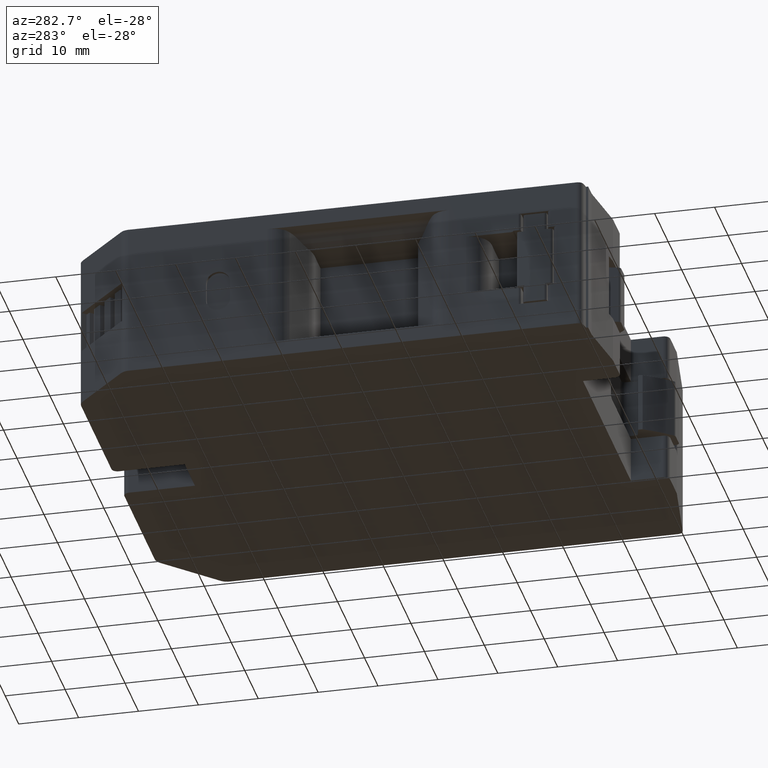
[diagram: clean part render]
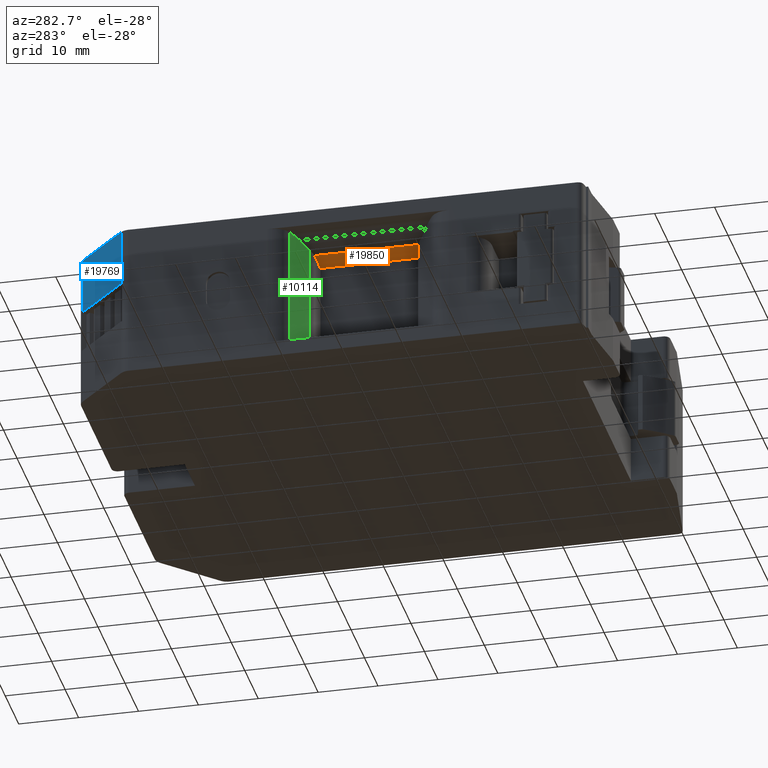
[diagram: same view with three faces highlighted in distinct colors, each labeled with its STEP entity id]
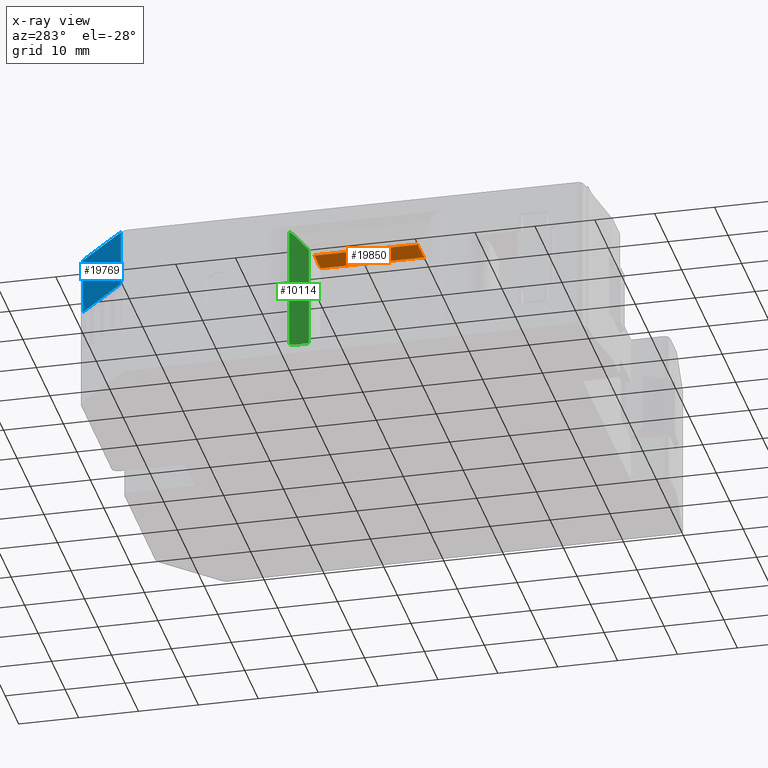
[diagram: x-ray of the same camera — body ghosted, the three highlighted faces saturated]
A machine part, auxiliary view with three faces highlighted in distinct colors.
The next image is the same camera in x-ray (body ghosted, the three faces saturated) — at least one of them is partly hidden behind the body in this view.
Their STEP definitions:

[orange] entity #19850 — the highlighted planar face has unit normal (-0, 0, -1).
#1558 = VECTOR ( 'NONE', #19999, 1000.000000000000000 ) ;
#1596 = CIRCLE ( 'NONE', #1613, 2.999999999999999100 ) ;
#1602 = CIRCLE ( 'NONE', #1603, 2.999999999999999100 ) ;
#1603 = AXIS2_PLACEMENT_3D ( 'NONE', #20073, #20076, #20069 ) ;
#1609 = VECTOR ( 'NONE', #20038, 1000.000000000000000 ) ;
#1613 = AXIS2_PLACEMENT_3D ( 'NONE', #20008, #20011, #20001 ) ;
#1627 = VECTOR ( 'NONE', #20129, 1000.000000000000000 ) ;
#1877 = VECTOR ( 'NONE', #3977, 1000.000000000000000 ) ;
#3977 = DIRECTION ( 'NONE',  ( -1.106295184907162000E-014, 1.000000000000000000, 1.631448787927795000E-017 ) ) ;
#5601 = EDGE_LOOP ( 'NONE', ( #22335, #22330, #22317, #22278, #22318, #22279 ) ) ;
#8018 = EDGE_CURVE ( 'NONE', #20410, #20424, #19996, .T. ) ;
#8026 = EDGE_CURVE ( 'NONE', #20468, #20448, #1596, .T. ) ;
#8031 = EDGE_CURVE ( 'NONE', #20448, #20424, #20013, .T. ) ;
#8059 = EDGE_CURVE ( 'NONE', #20407, #20428, #1602, .T. ) ;
#8083 = EDGE_CURVE ( 'NONE', #20410, #20407, #20126, .T. ) ;
#8789 = EDGE_CURVE ( 'NONE', #20428, #20468, #22402, .T. ) ;
#19850 = ADVANCED_FACE ( 'NONE', ( #23367 ), #23379, .T. ) ;
#19984 = CARTESIAN_POINT ( 'NONE',  ( -20.94802426070901900, -30.34998128246512600, -2.904509911729998600 ) ) ;
#19996 = LINE ( 'NONE', #19984, #1558 ) ;
#19999 = DIRECTION ( 'NONE',  ( 0.0000000000000000000, 1.000000000000000000, 1.631448787798985100E-017 ) ) ;
#20001 = DIRECTION ( 'NONE',  ( -1.000000000000000000, 0.0000000000000000000, 1.160819126007813800E-013 ) ) ;
#20008 = CARTESIAN_POINT ( 'NONE',  ( -25.43322869652761400, -10.14998128246510600, -2.904509911729438200 ) ) ;
#20011 = DIRECTION ( 'NONE',  ( 1.160191391923536000E-013, -1.631448787798985100E-017, 1.000000000000000000 ) ) ;
#20013 = LINE ( 'NONE', #20035, #1609 ) ;
#20035 = CARTESIAN_POINT ( 'NONE',  ( -9.354622711045534400, -13.14998128246510400, -2.904509911731339300 ) ) ;
#20038 = DIRECTION ( 'NONE',  ( 1.000000000000000000, 4.389960119497509900E-033, -1.160191391923536000E-013 ) ) ;
#20069 = DIRECTION ( 'NONE',  ( -1.000000000000000000, 4.625929269271486900E-015, 1.160819126007813800E-013 ) ) ;
#20073 = CARTESIAN_POINT ( 'NONE',  ( -24.71915469315663600, -33.34998128246512300, -2.904509911729538500 ) ) ;
#20076 = DIRECTION ( 'NONE',  ( 1.160191391923536000E-013, -1.631448787798985100E-017, 1.000000000000000000 ) ) ;
#20126 = LINE ( 'NONE', #20141, #1627 ) ;
#20129 = DIRECTION ( 'NONE',  ( -1.000000000000000000, -1.071932045487979900E-016, 1.160191391923536000E-013 ) ) ;
#20141 = CARTESIAN_POINT ( 'NONE',  ( -9.354622711045534400, -30.34998128246512600, -2.904509911731339300 ) ) ;
#20407 = VERTEX_POINT ( 'NONE', #23901 ) ;
#20410 = VERTEX_POINT ( 'NONE', #23883 ) ;
#20424 = VERTEX_POINT ( 'NONE', #23887 ) ;
#20428 = VERTEX_POINT ( 'NONE', #23893 ) ;
#20448 = VERTEX_POINT ( 'NONE', #23965 ) ;
#20468 = VERTEX_POINT ( 'NONE', #23991 ) ;
#21683 = AXIS2_PLACEMENT_3D ( 'NONE', #23411, #23366, #23402 ) ;
#22278 = ORIENTED_EDGE ( 'NONE', *, *, #8059, .T. ) ;
#22279 = ORIENTED_EDGE ( 'NONE', *, *, #8026, .T. ) ;
#22317 = ORIENTED_EDGE ( 'NONE', *, *, #8083, .T. ) ;
#22318 = ORIENTED_EDGE ( 'NONE', *, *, #8789, .T. ) ;
#22330 = ORIENTED_EDGE ( 'NONE', *, *, #8018, .F. ) ;
#22335 = ORIENTED_EDGE ( 'NONE', *, *, #8031, .T. ) ;
#22402 = LINE ( 'NONE', #22403, #1877 ) ;
#22403 = CARTESIAN_POINT ( 'NONE',  ( -25.50117287113221200, -30.34998128246492800, -2.904509911729490100 ) ) ;
#23366 = DIRECTION ( 'NONE',  ( -1.160191391923536000E-013, 1.631448787798985100E-017, -1.000000000000000000 ) ) ;
#23367 = FACE_OUTER_BOUND ( 'NONE', #5601, .T. ) ;
#23379 = PLANE ( 'NONE',  #21683 ) ;
#23402 = DIRECTION ( 'NONE',  ( -1.000000000000000000, -4.389960119497509900E-033, 1.160191391923536000E-013 ) ) ;
#23411 = CARTESIAN_POINT ( 'NONE',  ( -41.72091837836281100, -30.34998128246512600, -2.904509911727589000 ) ) ;
#23883 = CARTESIAN_POINT ( 'NONE',  ( -20.94802426070901900, -30.34998128246510200, -2.904509911729538500 ) ) ;
#23887 = CARTESIAN_POINT ( 'NONE',  ( -20.94802426070901900, -13.14998128246510400, -2.904509911729538500 ) ) ;
#23893 = CARTESIAN_POINT ( 'NONE',  ( -25.50117287113221200, -30.45369960256656600, -2.904509911729490100 ) ) ;
#23901 = CARTESIAN_POINT ( 'NONE',  ( -24.71915469315663600, -30.34998128246512600, -2.904509911729538500 ) ) ;
#23965 = CARTESIAN_POINT ( 'NONE',  ( -25.43322869652761400, -13.14998128246510400, -2.904509911729438200 ) ) ;
#23991 = CARTESIAN_POINT ( 'NONE',  ( -25.50117287113221200, -13.14921178196615500, -2.904509911729438200 ) ) ;

[blue] entity #19769 — the highlighted planar face has unit normal (-0.7071, 0.7071, 0).
#53 = VECTOR ( 'NONE', #17440, 1000.000000000000000 ) ;
#72 = VECTOR ( 'NONE', #17795, 1000.000000000000000 ) ;
#90 = VECTOR ( 'NONE', #17996, 1000.000000000000100 ) ;
#97 = VECTOR ( 'NONE', #18038, 1000.000000000000100 ) ;
#5334 = EDGE_LOOP ( 'NONE', ( #6121, #6147, #6156, #6122 ) ) ;
#6121 = ORIENTED_EDGE ( 'NONE', *, *, #21358, .T. ) ;
#6122 = ORIENTED_EDGE ( 'NONE', *, *, #21156, .F. ) ;
#6147 = ORIENTED_EDGE ( 'NONE', *, *, #21333, .F. ) ;
#6156 = ORIENTED_EDGE ( 'NONE', *, *, #21362, .F. ) ;
#12046 = VERTEX_POINT ( 'NONE', #16919 ) ;
#12113 = VERTEX_POINT ( 'NONE', #17142 ) ;
#12180 = VERTEX_POINT ( 'NONE', #17381 ) ;
#12221 = VERTEX_POINT ( 'NONE', #17605 ) ;
#16919 = CARTESIAN_POINT ( 'NONE',  ( -23.54930707917412700, 25.97550868774880000, 1.745490088267506800 ) ) ;
#17142 = CARTESIAN_POINT ( 'NONE',  ( -23.54930707917407100, 25.97550868774878200, -7.754509911715198100 ) ) ;
#17381 = CARTESIAN_POINT ( 'NONE',  ( -31.77926462217044100, 17.74555114475247900, -7.754509911715205200 ) ) ;
#17421 = LINE ( 'NONE', #17428, #53 ) ;
#17428 = CARTESIAN_POINT ( 'NONE',  ( -23.54930707917372200, 25.97550868774793300, 116.2698819785800200 ) ) ;
#17440 = DIRECTION ( 'NONE',  ( 3.543549816310985300E-015, -7.587818628405040500E-015, 1.000000000000000000 ) ) ;
#17605 = CARTESIAN_POINT ( 'NONE',  ( -31.77926462217040500, 17.74555114475236200, 1.745490088268547600 ) ) ;
#17786 = LINE ( 'NONE', #17800, #72 ) ;
#17795 = DIRECTION ( 'NONE',  ( -3.543549816310985300E-015, 7.587818628405040500E-015, -1.000000000000000000 ) ) ;
#17800 = CARTESIAN_POINT ( 'NONE',  ( -31.77926462217000400, 17.74555114475149500, 116.2698819785800200 ) ) ;
#17996 = DIRECTION ( 'NONE',  ( -0.7071067811865474600, -0.7071067811865474600, 0.0000000000000000000 ) ) ;
#18009 = LINE ( 'NONE', #18035, #97 ) ;
#18035 = CARTESIAN_POINT ( 'NONE',  ( -27.97573453692578800, 21.54908122999709300, 1.745490088268066400 ) ) ;
#18038 = DIRECTION ( 'NONE',  ( -0.7071067811865474600, -0.7071067811865474600, 8.988620500951424700E-014 ) ) ;
#18068 = LINE ( 'NONE', #18069, #90 ) ;
#18069 = CARTESIAN_POINT ( 'NONE',  ( -31.77926462217069300, 17.74555114475228700, -7.754509911715251400 ) ) ;
#19769 = ADVANCED_FACE ( 'NONE', ( #22939 ), #22941, .T. ) ;
#21156 = EDGE_CURVE ( 'NONE', #12113, #12046, #17421, .T. ) ;
#21333 = EDGE_CURVE ( 'NONE', #12221, #12180, #17786, .T. ) ;
#21358 = EDGE_CURVE ( 'NONE', #12113, #12180, #18068, .T. ) ;
#21362 = EDGE_CURVE ( 'NONE', #12046, #12221, #18009, .T. ) ;
#21657 = AXIS2_PLACEMENT_3D ( 'NONE', #22980, #22966, #22972 ) ;
#22939 = FACE_OUTER_BOUND ( 'NONE', #5334, .T. ) ;
#22941 = PLANE ( 'NONE',  #21657 ) ;
#22966 = DIRECTION ( 'NONE',  ( -0.7071067811865475700, 0.7071067811865475700, 7.871066111144652400E-015 ) ) ;
#22972 = DIRECTION ( 'NONE',  ( -0.7071067811865474600, -0.7071067811865474600, 0.0000000000000000000 ) ) ;
#22980 = CARTESIAN_POINT ( 'NONE',  ( -31.77926462217000400, 17.74555114475159800, 116.2698819785800000 ) ) ;

[green] entity #10114 — the highlighted planar face has unit normal (0.5736, 0.8192, -0).
#5859 = EDGE_LOOP ( 'NONE', ( #11777, #11897, #11829, #11675, #11810, #11860, #11822, #11803 ) ) ;
#6924 = VECTOR ( 'NONE', #16983, 1000.000000000000000 ) ;
#6927 = VECTOR ( 'NONE', #17222, 1000.000000000000100 ) ;
#7156 =( BOUNDED_CURVE ( )  B_SPLINE_CURVE ( 3, ( #19386, #19429, #19382, #19383 ),
 .UNSPECIFIED., .F., .T. ) 
 B_SPLINE_CURVE_WITH_KNOTS ( ( 4, 4 ),
 ( 1.907690045634636400, 2.158798930342512400 ),
 .UNSPECIFIED. ) 
 CURVE ( )  GEOMETRIC_REPRESENTATION_ITEM ( )  RATIONAL_B_SPLINE_CURVE ( ( 1.000000000000000000, 0.9947522598508673500, 0.9947522598508673500, 1.000000000000000000 ) ) 
 REPRESENTATION_ITEM ( '' )  );
#7174 =( BOUNDED_CURVE ( )  B_SPLINE_CURVE ( 3, ( #19365, #19368, #19353, #19330 ),
 .UNSPECIFIED., .F., .T. ) 
 B_SPLINE_CURVE_WITH_KNOTS ( ( 4, 4 ),
 ( 1.907690045634674800, 2.158798930342471900 ),
 .UNSPECIFIED. ) 
 CURVE ( )  GEOMETRIC_REPRESENTATION_ITEM ( )  RATIONAL_B_SPLINE_CURVE ( ( 1.000000000000000000, 0.9947522598508706800, 0.9947522598508706800, 1.000000000000000000 ) ) 
 REPRESENTATION_ITEM ( '' )  );
#7176 =( BOUNDED_CURVE ( )  B_SPLINE_CURVE ( 3, ( #19037, #19063, #19061, #19064 ),
 .UNSPECIFIED., .F., .F. ) 
 B_SPLINE_CURVE_WITH_KNOTS ( ( 4, 4 ),
 ( 4.124386376837099600, 4.507034210283648300 ),
 .UNSPECIFIED. ) 
 CURVE ( )  GEOMETRIC_REPRESENTATION_ITEM ( )  RATIONAL_B_SPLINE_CURVE ( ( 1.000000000000000000, 0.9878355607562543400, 0.9878355607562543400, 1.000000000000000000 ) ) 
 REPRESENTATION_ITEM ( '' )  );
#7177 =( BOUNDED_CURVE ( )  B_SPLINE_CURVE ( 3, ( #16753, #16804, #16751, #16776 ),
 .UNSPECIFIED., .F., .T. ) 
 B_SPLINE_CURVE_WITH_KNOTS ( ( 4, 4 ),
 ( 4.124386376837141400, 4.507034210283668700 ),
 .UNSPECIFIED. ) 
 CURVE ( )  GEOMETRIC_REPRESENTATION_ITEM ( )  RATIONAL_B_SPLINE_CURVE ( ( 1.000000000000000000, 0.9878355607562557800, 0.9878355607562557800, 1.000000000000000000 ) ) 
 REPRESENTATION_ITEM ( '' )  );
#9065 = DIRECTION ( 'NONE',  ( 0.5735764363510400500, 0.8191520442889961300, -6.744722824693532400E-014 ) ) ;
#9071 = CARTESIAN_POINT ( 'NONE',  ( -30.65935680519463300, -10.15293075140825600, 33.02680536980161500 ) ) ;
#9078 = DIRECTION ( 'NONE',  ( 0.8191520442889960200, -0.5735764363510399400, -8.536258717122762000E-014 ) ) ;
#9081 = FACE_OUTER_BOUND ( 'NONE', #5859, .T. ) ;
#9083 = PLANE ( 'NONE',  #16461 ) ;
#10114 = ADVANCED_FACE ( 'NONE', ( #9081 ), #9083, .F. ) ;
#11375 = EDGE_CURVE ( 'NONE', #20552, #20520, #19090, .T. ) ;
#11415 = EDGE_CURVE ( 'NONE', #20512, #20527, #19168, .T. ) ;
#11625 = EDGE_CURVE ( 'NONE', #20520, #20542, #7174, .T. ) ;
#11675 = ORIENTED_EDGE ( 'NONE', *, *, #11415, .T. ) ;
#11700 = EDGE_CURVE ( 'NONE', #20552, #20500, #7156, .T. ) ;
#11777 = ORIENTED_EDGE ( 'NONE', *, *, #11700, .T. ) ;
#11803 = ORIENTED_EDGE ( 'NONE', *, *, #11375, .F. ) ;
#11810 = ORIENTED_EDGE ( 'NONE', *, *, #11924, .F. ) ;
#11822 = ORIENTED_EDGE ( 'NONE', *, *, #11625, .F. ) ;
#11829 = ORIENTED_EDGE ( 'NONE', *, *, #11956, .T. ) ;
#11860 = ORIENTED_EDGE ( 'NONE', *, *, #12135, .F. ) ;
#11897 = ORIENTED_EDGE ( 'NONE', *, *, #12087, .T. ) ;
#11924 = EDGE_CURVE ( 'NONE', #20586, #20527, #7176, .T. ) ;
#11956 = EDGE_CURVE ( 'NONE', #20544, #20512, #7177, .T. ) ;
#12087 = EDGE_CURVE ( 'NONE', #20500, #20544, #17057, .T. ) ;
#12135 = EDGE_CURVE ( 'NONE', #20542, #20586, #17176, .T. ) ;
#16461 = AXIS2_PLACEMENT_3D ( 'NONE', #9071, #9065, #9078 ) ;
#16570 = VECTOR ( 'NONE', #19100, 1000.000000000000000 ) ;
#16591 = VECTOR ( 'NONE', #19150, 1000.000000000000000 ) ;
#16697 = CARTESIAN_POINT ( 'NONE',  ( -28.90542826732942000, -11.38104473512310800, -20.86476138339960000 ) ) ;
#16751 = CARTESIAN_POINT ( 'NONE',  ( -30.03117081650398400, -10.59279131609004000, -1.040411852278461600 ) ) ;
#16753 = CARTESIAN_POINT ( 'NONE',  ( -28.90542826732861300, -11.38104473510620500, -1.644258440038289600 ) ) ;
#16776 = CARTESIAN_POINT ( 'NONE',  ( -30.65935680519843500, -10.15293075140840900, -0.9095663948975908400 ) ) ;
#16804 = CARTESIAN_POINT ( 'NONE',  ( -29.43932854114687500, -11.00720373872629000, -1.288324924159280700 ) ) ;
#16983 = DIRECTION ( 'NONE',  ( -0.7189343781127706100, 0.5034032710327046600, 0.4792895854086307000 ) ) ;
#17055 = CARTESIAN_POINT ( 'NONE',  ( -34.96367306038902700, -7.139016062685004500, 2.394571422003260300 ) ) ;
#17057 = LINE ( 'NONE', #17055, #6924 ) ;
#17176 = LINE ( 'NONE', #17276, #6927 ) ;
#17222 = DIRECTION ( 'NONE',  ( -0.7189343781127951500, 0.5034032710327555100, -0.4792895854085403900 ) ) ;
#17276 = CARTESIAN_POINT ( 'NONE',  ( -34.96367306039041300, -7.139016062701456300, -24.90359124544040300 ) ) ;
#19037 = CARTESIAN_POINT ( 'NONE',  ( -28.90542826732942000, -11.38104473512310800, -20.86476138339960000 ) ) ;
#19061 = CARTESIAN_POINT ( 'NONE',  ( -30.03117081650497900, -10.59279131610689400, -21.46860797115927600 ) ) ;
#19063 = CARTESIAN_POINT ( 'NONE',  ( -29.43932854114783700, -11.00720373874320000, -21.22069489927850200 ) ) ;
#19064 = CARTESIAN_POINT ( 'NONE',  ( -30.65935680519943300, -10.15293075142516000, -21.59945342854003400 ) ) ;
#19090 = LINE ( 'NONE', #19096, #16570 ) ;
#19096 = CARTESIAN_POINT ( 'NONE',  ( -27.15395800557701700, -12.60743741533195500, 33.02680536980111000 ) ) ;
#19100 = DIRECTION ( 'NONE',  ( -1.125774478160156000E-013, -3.510284733068980400E-015, -1.000000000000000000 ) ) ;
#19149 = CARTESIAN_POINT ( 'NONE',  ( -30.65935680519463300, -10.15293075140825600, 33.02680536980161500 ) ) ;
#19150 = DIRECTION ( 'NONE',  ( -1.125774478160156000E-013, -3.510284733068980400E-015, -1.000000000000000000 ) ) ;
#19168 = LINE ( 'NONE', #19149, #16591 ) ;
#19330 = CARTESIAN_POINT ( 'NONE',  ( -28.27467385225942900, -11.82270373131415500, -20.44425844001959900 ) ) ;
#19353 = CARTESIAN_POINT ( 'NONE',  ( -27.92553044785598700, -12.06717657499367600, -20.21149617041729800 ) ) ;
#19365 = CARTESIAN_POINT ( 'NONE',  ( -27.15395800558204100, -12.60743741534905600, -19.88557981057930800 ) ) ;
#19368 = CARTESIAN_POINT ( 'NONE',  ( -27.54998774846216500, -12.33013440402889100, -20.02428753834911000 ) ) ;
#19382 = CARTESIAN_POINT ( 'NONE',  ( -27.92553044785495000, -12.06717657497674200, -2.297523653020636700 ) ) ;
#19383 = CARTESIAN_POINT ( 'NONE',  ( -28.27467385225862600, -11.82270373129725600, -2.064761383418292100 ) ) ;
#19386 = CARTESIAN_POINT ( 'NONE',  ( -27.15395800558062700, -12.60743741533210400, -2.623440012858739400 ) ) ;
#19429 = CARTESIAN_POINT ( 'NONE',  ( -27.54998774846101000, -12.33013440401201100, -2.484732285088925500 ) ) ;
#20500 = VERTEX_POINT ( 'NONE', #24010 ) ;
#20512 = VERTEX_POINT ( 'NONE', #24058 ) ;
#20520 = VERTEX_POINT ( 'NONE', #24051 ) ;
#20527 = VERTEX_POINT ( 'NONE', #24052 ) ;
#20542 = VERTEX_POINT ( 'NONE', #24060 ) ;
#20544 = VERTEX_POINT ( 'NONE', #24048 ) ;
#20552 = VERTEX_POINT ( 'NONE', #24006 ) ;
#20586 = VERTEX_POINT ( 'NONE', #16697 ) ;
#24006 = CARTESIAN_POINT ( 'NONE',  ( -27.15395800558062700, -12.60743741533210400, -2.623440012858739400 ) ) ;
#24010 = CARTESIAN_POINT ( 'NONE',  ( -28.27467385225862600, -11.82270373129725600, -2.064761383418292100 ) ) ;
#24048 = CARTESIAN_POINT ( 'NONE',  ( -28.90542826732861300, -11.38104473510620500, -1.644258440038289600 ) ) ;
#24051 = CARTESIAN_POINT ( 'NONE',  ( -27.15395800558204100, -12.60743741534905600, -19.88557981057930800 ) ) ;
#24052 = CARTESIAN_POINT ( 'NONE',  ( -30.65935680519943300, -10.15293075142516000, -21.59945342854003400 ) ) ;
#24058 = CARTESIAN_POINT ( 'NONE',  ( -30.65935680519843500, -10.15293075140840900, -0.9095663948975908400 ) ) ;
#24060 = CARTESIAN_POINT ( 'NONE',  ( -28.27467385225942900, -11.82270373131415500, -20.44425844001959900 ) ) ;